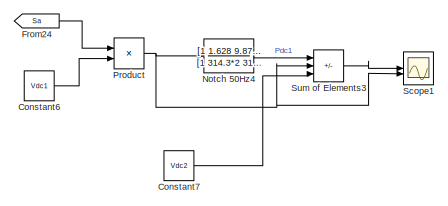
[diagram: root canvas - part 1/8, top right region]
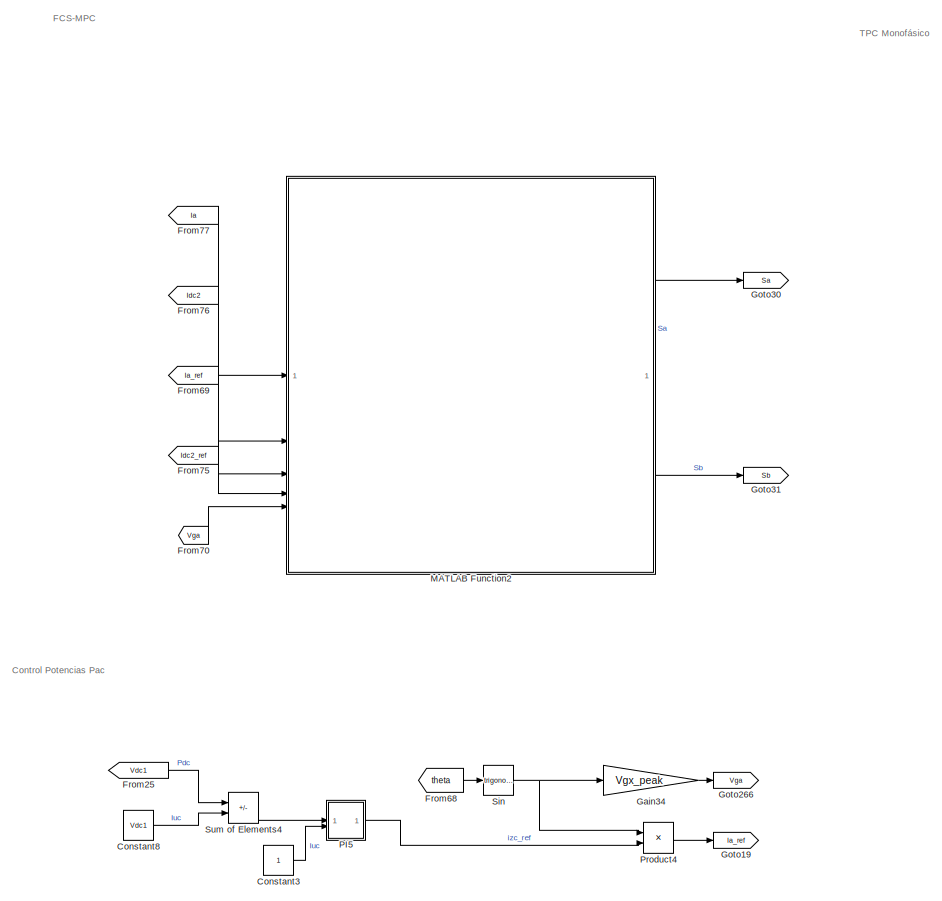
[diagram: root canvas - part 2/8, top center region]
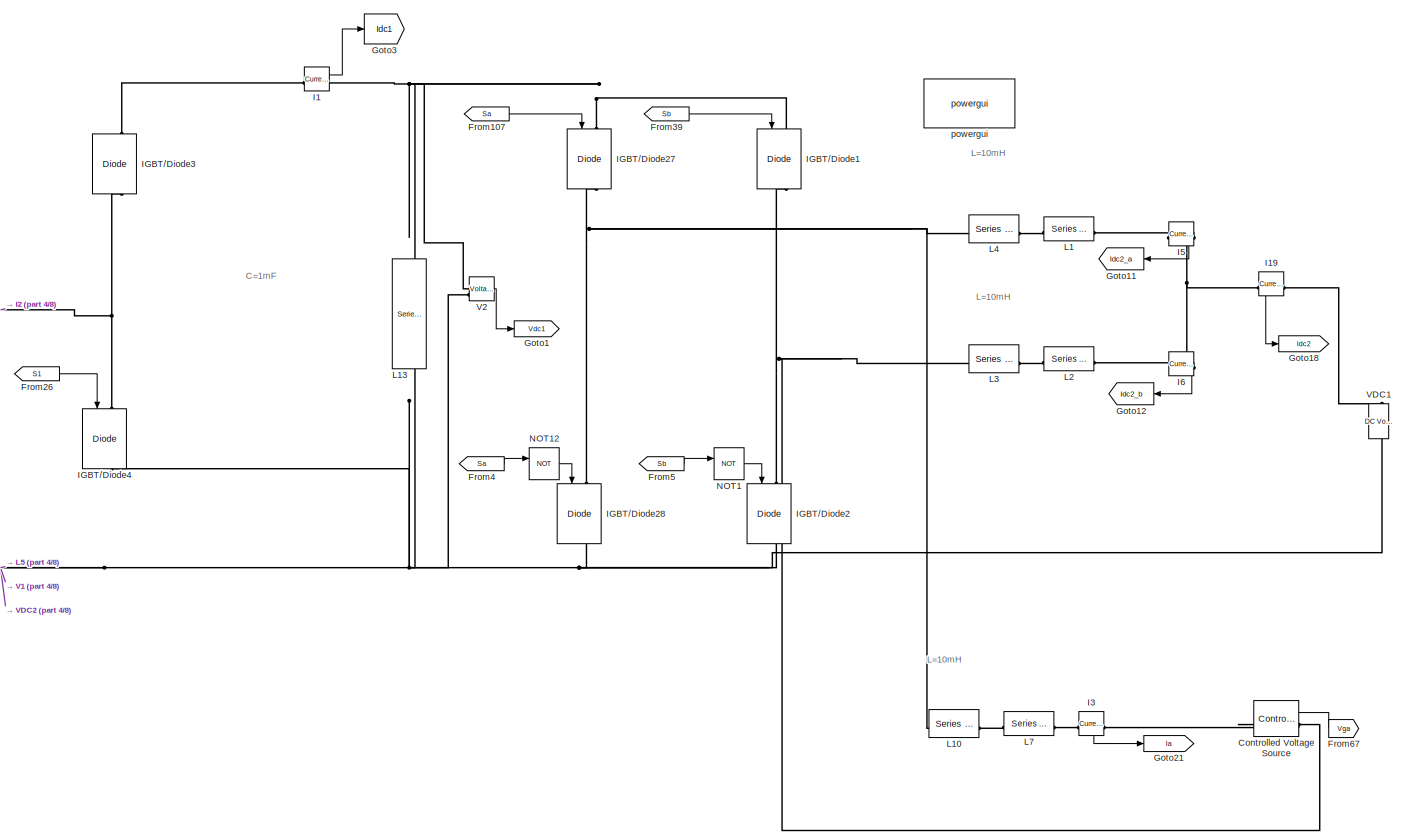
[diagram: root canvas - part 3/8, middle right region]
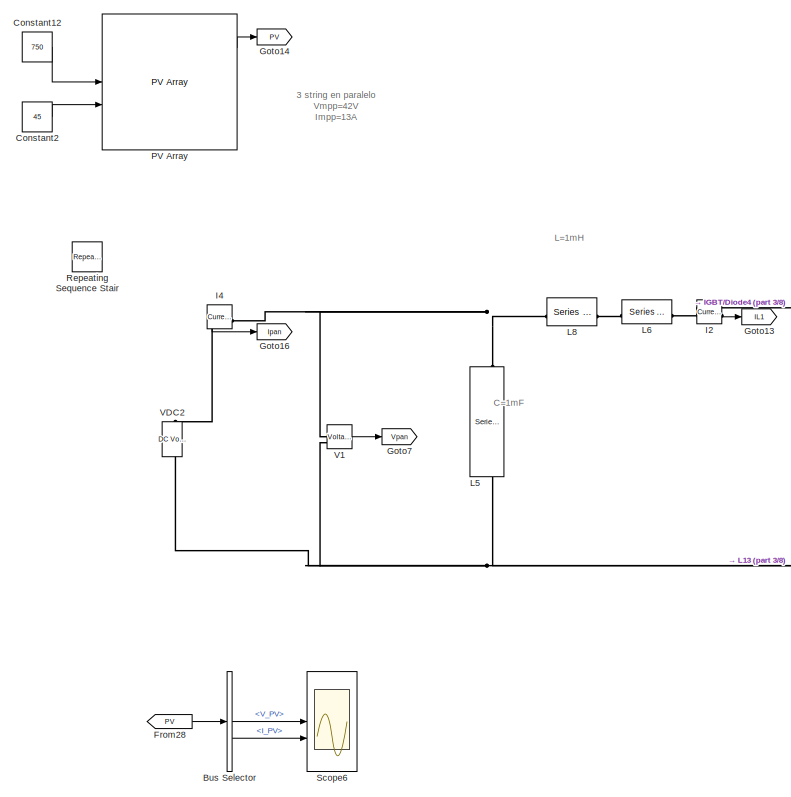
[diagram: root canvas - part 4/8, top center region]
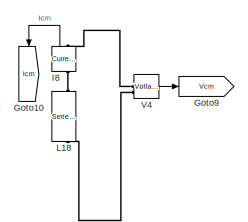
[diagram: root canvas - part 5/8, middle right region]
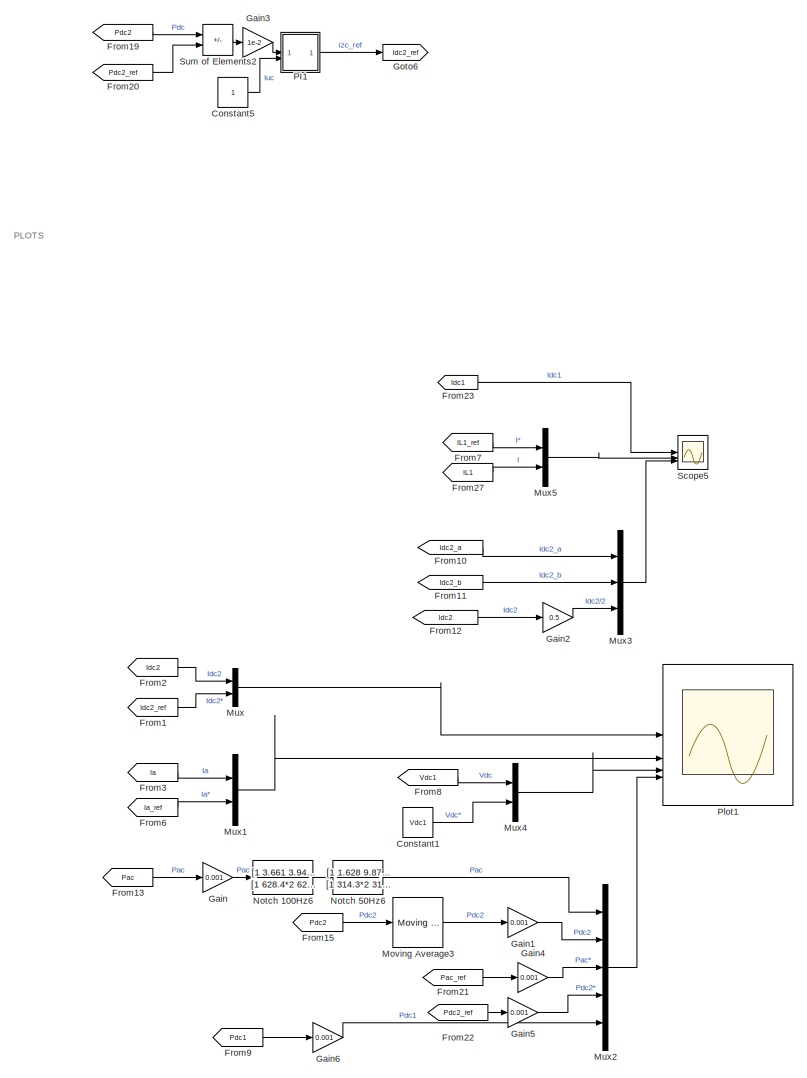
[diagram: root canvas - part 6/8, bottom center region]
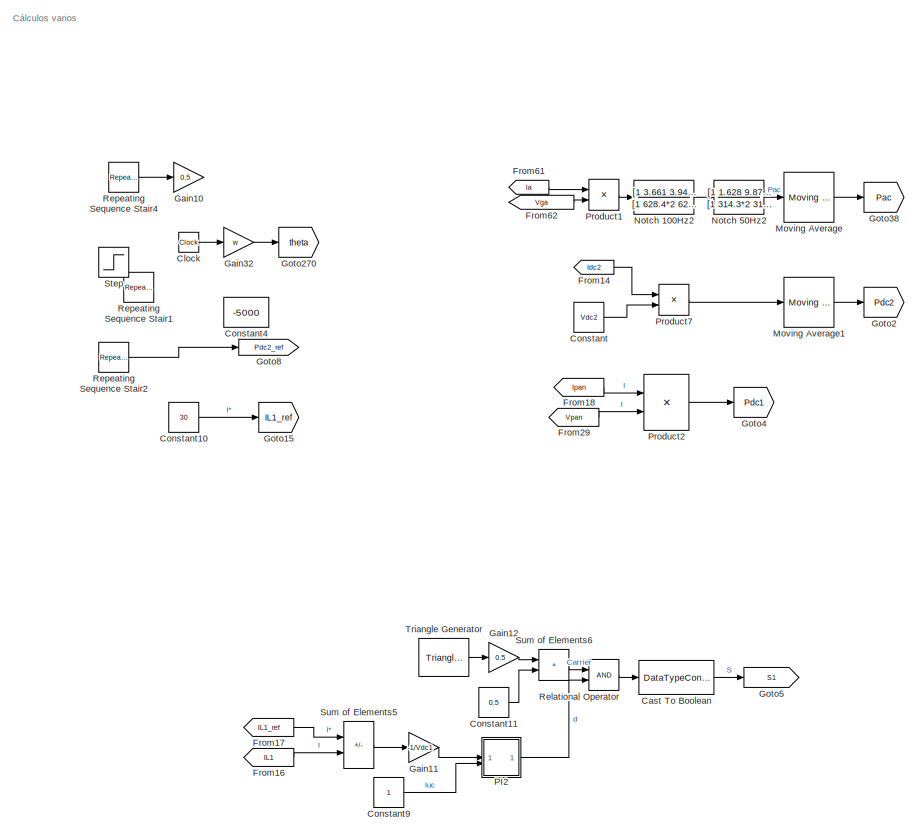
[diagram: root canvas - part 7/8, bottom center region]
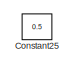
[diagram: root canvas - part 8/8, bottom left region]
MODEL slx_93b02511a772
KIND model
CONFIG AbsTol = auto
CONFIG EnableMultiTasking = off
CONFIG FixedStep = Tsimu
CONFIG MaxStep = auto
CONFIG MinStep = auto
CONFIG RelTol = 1e-3
CONFIG SampleTimeConstraint = Unconstrained
CONFIG SolverName = FixedStepAuto
CONFIG StartTime = 0.0
CONFIG StopTime = 5
BLOCK [BusSelector] Bus Selector
  OutputSignals = V_PV,I_PV
BLOCK [DataTypeConversion] Cast To Boolean
  OutDataTypeStr = boolean
  RndMeth = Floor
  SaturateOnIntegerOverflow = off
BLOCK [Clock] Clock
BLOCK [Constant] Constant
  NameLocation = left
  Value = Vdc2
BLOCK [Constant] Constant1
  Value = Vdc1
BLOCK [Constant] Constant10
  Value = 30
BLOCK [Constant] Constant11
  Value = 0.5
BLOCK [Constant] Constant12
  Value = 750
BLOCK [Constant] Constant2
  Value = 45
BLOCK [Constant] Constant25
  Value = 0.5
BLOCK [Constant] Constant3
BLOCK [Constant] Constant4
  Value = -5000
BLOCK [Constant] Constant5
BLOCK [Constant] Constant6
  Commented = on
  Value = Vdc1
BLOCK [Constant] Constant7
  Commented = on
  Value = Vdc2
BLOCK [Constant] Constant8
  Value = Vdc1
BLOCK [Constant] Constant9
BLOCK [Reference] Controlled Voltage Source  REF=spsControlledVoltageSourceLib/Controlled Voltage Source
  NameLocation = top
  SourceBlock = spsControlledVoltageSourceLib/Controlled Voltage Source
  SourceType = Controlled Voltage Source
BLOCK [From] From1
  GotoTag = Idc2_ref
BLOCK [From] From10
  GotoTag = Idc2_a
BLOCK [From] From107
  GotoTag = Sa
BLOCK [From] From11
  GotoTag = Idc2_b
BLOCK [From] From12
  GotoTag = Idc2
BLOCK [From] From13
  GotoTag = Pac
BLOCK [From] From14
  GotoTag = Idc2
BLOCK [From] From15
  GotoTag = Pdc2
BLOCK [From] From16
  GotoTag = IL1
BLOCK [From] From17
  GotoTag = IL1_ref
BLOCK [From] From18
  GotoTag = Ipan
BLOCK [From] From19
  GotoTag = Pdc2
BLOCK [From] From2
  GotoTag = Idc2
BLOCK [From] From20
  GotoTag = Pdc2_ref
BLOCK [From] From21
  Commented = on
  GotoTag = Pac_ref
BLOCK [From] From22
  GotoTag = Pdc2_ref
BLOCK [From] From23
  GotoTag = Idc1
BLOCK [From] From24
  Commented = on
  GotoTag = Sa
BLOCK [From] From25
  GotoTag = Vdc1
BLOCK [From] From26
  GotoTag = S1
BLOCK [From] From27
  GotoTag = IL1
BLOCK [From] From28
  GotoTag = PV
BLOCK [From] From29
  GotoTag = Vpan
BLOCK [From] From3
  GotoTag = Ia
BLOCK [From] From39
  GotoTag = Sb
BLOCK [From] From4
  GotoTag = Sa
BLOCK [From] From5
  GotoTag = Sb
BLOCK [From] From6
  GotoTag = Ia_ref
BLOCK [From] From61
  GotoTag = Ia
BLOCK [From] From62
  GotoTag = Vga
BLOCK [From] From67
  GotoTag = Vga
  NameLocation = top
BLOCK [From] From68
  GotoTag = theta
BLOCK [From] From69
  GotoTag = Ia_ref
BLOCK [From] From7
  GotoTag = IL1_ref
BLOCK [From] From70
  GotoTag = Vga
BLOCK [From] From75
  GotoTag = Idc2_ref
BLOCK [From] From76
  GotoTag = Idc2
BLOCK [From] From77
  GotoTag = Ia
BLOCK [From] From8
  GotoTag = Vdc1
BLOCK [From] From9
  GotoTag = Pdc1
BLOCK [Gain] Gain
  Gain = 0.001
BLOCK [Gain] Gain1
  Gain = 0.001
BLOCK [Gain] Gain10
  Commented = on
  Gain = 0.5
BLOCK [Gain] Gain11
  Gain = -1/Vdc1
BLOCK [Gain] Gain12
  Gain = 0.5
BLOCK [Gain] Gain2
  Gain = 0.5
BLOCK [Gain] Gain3
  Gain = 1e-2
BLOCK [Gain] Gain32
  Gain = w
BLOCK [Gain] Gain34
  Gain = Vgx_peak
BLOCK [Gain] Gain4
  Commented = on
  Gain = 0.001
BLOCK [Gain] Gain5
  Gain = 0.001
BLOCK [Gain] Gain6
  Gain = 0.001
BLOCK [Goto] Goto1
  GotoTag = Vdc1
BLOCK [Goto] Goto10
  GotoTag = Icm
  NameLocation = right
BLOCK [Goto] Goto11
  GotoTag = Idc2_a
BLOCK [Goto] Goto12
  GotoTag = Idc2_b
BLOCK [Goto] Goto13
  GotoTag = IL1
  NameLocation = top
BLOCK [Goto] Goto14
  GotoTag = PV
  NameLocation = top
BLOCK [Goto] Goto15
  GotoTag = IL1_ref
  NameLocation = top
BLOCK [Goto] Goto16
  GotoTag = Ipan
  NameLocation = top
BLOCK [Goto] Goto18
  GotoTag = Idc2
  NameLocation = top
BLOCK [Goto] Goto19
  GotoTag = Ia_ref
BLOCK [Goto] Goto2
  GotoTag = Pdc2
  NameLocation = top
BLOCK [Goto] Goto21
  GotoTag = Ia
  NameLocation = top
BLOCK [Goto] Goto266
  GotoTag = Vga
BLOCK [Goto] Goto270
  GotoTag = theta
BLOCK [Goto] Goto3
  GotoTag = Idc1
  NameLocation = top
BLOCK [Goto] Goto30
  GotoTag = Sa
BLOCK [Goto] Goto31
  GotoTag = Sb
BLOCK [Goto] Goto38
  GotoTag = Pac
  NameLocation = top
BLOCK [Goto] Goto4
  GotoTag = Pdc1
  NameLocation = top
BLOCK [Goto] Goto5
  GotoTag = S1
  NameLocation = top
BLOCK [Goto] Goto6
  GotoTag = Idc2_ref
BLOCK [Goto] Goto7
  GotoTag = Vpan
  NameLocation = top
BLOCK [Goto] Goto8
  GotoTag = Pdc2_ref
  NameLocation = left
BLOCK [Goto] Goto9
  GotoTag = Vcm
  NameLocation = top
BLOCK [Reference] I1  REF=spsCurrentMeasurementLib/Current Measurement
  NameLocation = top
  SourceBlock = spsCurrentMeasurementLib/Current Measurement
  SourceType = Current Measurement
BLOCK [Reference] I19  REF=spsCurrentMeasurementLib/Current Measurement
  SourceBlock = spsCurrentMeasurementLib/Current Measurement
  SourceType = Current Measurement
BLOCK [Reference] I2  REF=spsCurrentMeasurementLib/Current Measurement
  SourceBlock = spsCurrentMeasurementLib/Current Measurement
  SourceType = Current Measurement
BLOCK [Reference] I3  REF=spsCurrentMeasurementLib/Current Measurement
  SourceBlock = spsCurrentMeasurementLib/Current Measurement
  SourceType = Current Measurement
BLOCK [Reference] I4  REF=spsCurrentMeasurementLib/Current Measurement
  SourceBlock = spsCurrentMeasurementLib/Current Measurement
  SourceType = Current Measurement
BLOCK [Reference] I5  REF=spsCurrentMeasurementLib/Current Measurement
  SourceBlock = spsCurrentMeasurementLib/Current Measurement
  SourceType = Current Measurement
BLOCK [Reference] I6  REF=spsCurrentMeasurementLib/Current Measurement
  SourceBlock = spsCurrentMeasurementLib/Current Measurement
  SourceType = Current Measurement
BLOCK [Reference] I8  REF=spsCurrentMeasurementLib/Current Measurement
  NameLocation = left
  SourceBlock = spsCurrentMeasurementLib/Current Measurement
  SourceType = Current Measurement
BLOCK [Reference] IGBT//Diode1  REF=spsIGBTDiodeLib/IGBT//Diode
  NameLocation = left
  SourceBlock = spsIGBTDiodeLib/IGBT//Diode
  SourceType = IGBT/Diode
BLOCK [Reference] IGBT//Diode2  REF=spsIGBTDiodeLib/IGBT//Diode
  NameLocation = left
  SourceBlock = spsIGBTDiodeLib/IGBT//Diode
  SourceType = IGBT/Diode
BLOCK [Reference] IGBT//Diode27  REF=spsIGBTDiodeLib/IGBT//Diode
  NameLocation = left
  SourceBlock = spsIGBTDiodeLib/IGBT//Diode
  SourceType = IGBT/Diode
BLOCK [Reference] IGBT//Diode28  REF=spsIGBTDiodeLib/IGBT//Diode
  NameLocation = left
  SourceBlock = spsIGBTDiodeLib/IGBT//Diode
  SourceType = IGBT/Diode
BLOCK [Reference] IGBT//Diode3  REF=spsIGBTDiodeLib/IGBT//Diode
  NameLocation = left
  SourceBlock = spsIGBTDiodeLib/IGBT//Diode
  SourceType = IGBT/Diode
BLOCK [Reference] IGBT//Diode4  REF=spsIGBTDiodeLib/IGBT//Diode
  NameLocation = left
  SourceBlock = spsIGBTDiodeLib/IGBT//Diode
  SourceType = IGBT/Diode
BLOCK [Reference] L1  REF=spsSeriesRLCBranchLib/Series RLC Branch
  SourceBlock = spsSeriesRLCBranchLib/Series RLC Branch
  SourceType = Series RLC Branch
BLOCK [Reference] L10  REF=spsSeriesRLCBranchLib/Series RLC Branch
  SourceBlock = spsSeriesRLCBranchLib/Series RLC Branch
  SourceType = Series RLC Branch
BLOCK [Reference] L13  REF=spsSeriesRLCBranchLib/Series RLC Branch
  NameLocation = left
  SourceBlock = spsSeriesRLCBranchLib/Series RLC Branch
  SourceType = Series RLC Branch
BLOCK [Reference] L18  REF=spsSeriesRLCBranchLib/Series RLC Branch
  NameLocation = left
  SourceBlock = spsSeriesRLCBranchLib/Series RLC Branch
  SourceType = Series RLC Branch
BLOCK [Reference] L2  REF=spsSeriesRLCBranchLib/Series RLC Branch
  SourceBlock = spsSeriesRLCBranchLib/Series RLC Branch
  SourceType = Series RLC Branch
BLOCK [Reference] L3  REF=spsSeriesRLCBranchLib/Series RLC Branch
  SourceBlock = spsSeriesRLCBranchLib/Series RLC Branch
  SourceType = Series RLC Branch
BLOCK [Reference] L4  REF=spsSeriesRLCBranchLib/Series RLC Branch
  SourceBlock = spsSeriesRLCBranchLib/Series RLC Branch
  SourceType = Series RLC Branch
BLOCK [Reference] L5  REF=spsSeriesRLCBranchLib/Series RLC Branch
  NameLocation = left
  SourceBlock = spsSeriesRLCBranchLib/Series RLC Branch
  SourceType = Series RLC Branch
BLOCK [Reference] L6  REF=spsSeriesRLCBranchLib/Series RLC Branch
  SourceBlock = spsSeriesRLCBranchLib/Series RLC Branch
  SourceType = Series RLC Branch
BLOCK [Reference] L7  REF=spsSeriesRLCBranchLib/Series RLC Branch
  SourceBlock = spsSeriesRLCBranchLib/Series RLC Branch
  SourceType = Series RLC Branch
BLOCK [Reference] L8  REF=spsSeriesRLCBranchLib/Series RLC Branch
  SourceBlock = spsSeriesRLCBranchLib/Series RLC Branch
  SourceType = Series RLC Branch
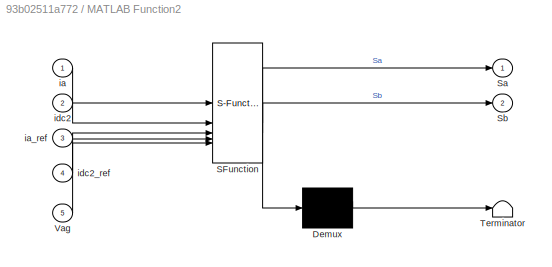
BLOCK [SubSystem] MATLAB Function2
  ErrorFcn = Stateflow.Translate.translate
  PermitHierarchicalResolution = ExplicitOnly
  SFBlockType = MATLAB Function
  TreatAsAtomicUnit = on
BLOCK [Demux] MATLAB Function2/ Demux 
  Outputs = 1
BLOCK [S-Function] MATLAB Function2/ SFunction 
  EnableBusSupport = on
  FunctionName = sf_sfun
  Parameters = A,B,Lo,Ts,Vdc1,Vdc2
  PortCounts = [5 3]
  SFcnIsStateOwnerBlock = off
  SFunctionDeploymentMode = off
  Tag = Stateflow S-Function 2
BLOCK [Terminator] MATLAB Function2/ Terminator 
BLOCK [Outport] MATLAB Function2/Sa
BLOCK [Outport] MATLAB Function2/Sb
  Port = 2
BLOCK [Inport] MATLAB Function2/Vag
  Port = 5
BLOCK [Inport] MATLAB Function2/ia
BLOCK [Inport] MATLAB Function2/ia_ref
  Port = 3
BLOCK [Inport] MATLAB Function2/idc2
  Port = 2
BLOCK [Inport] MATLAB Function2/idc2_ref
  Port = 4
BLOCK [Reference] Moving Average  REF=dspstat3/Moving
Average
  SourceBlock = dspstat3/Moving\nAverage
  SourceType = dsp.simulink.MovingAverage
BLOCK [Reference] Moving Average1  REF=dspstat3/Moving
Average
  SourceBlock = dspstat3/Moving\nAverage
  SourceType = dsp.simulink.MovingAverage
BLOCK [Reference] Moving Average3  REF=dspstat3/Moving
Average
  SourceBlock = dspstat3/Moving\nAverage
  SourceType = dsp.simulink.MovingAverage
BLOCK [Mux] Mux
  DisplayOption = bar
  Inputs = 2
BLOCK [Mux] Mux1
  DisplayOption = bar
  Inputs = 2
BLOCK [Mux] Mux2
  DisplayOption = bar
  Inputs = 5
BLOCK [Mux] Mux3
  DisplayOption = bar
  Inputs = 3
BLOCK [Mux] Mux4
  DisplayOption = bar
  Inputs = 2
BLOCK [Mux] Mux5
  DisplayOption = bar
  Inputs = 2
BLOCK [Logic] NOT1
  AllPortsSameDT = off
  IconShape = distinctive
  Operator = NOT
  OutDataTypeStr = boolean
BLOCK [Logic] NOT12
  AllPortsSameDT = off
  IconShape = distinctive
  Operator = NOT
  OutDataTypeStr = boolean
BLOCK [TransferFcn] Notch 100Hz2
  Denominator = [1 628.4*2 628.4^2]
  Numerator = [1 3.661 3.949e5]
BLOCK [TransferFcn] Notch 100Hz6
  Denominator = [1 628.4*2 628.4^2]
  Numerator = [1 3.661 3.949e5]
BLOCK [TransferFcn] Notch 50Hz2
  Denominator = [1 314.3*2 314.3^2]
  Numerator = [1 1.628 9.876e4]
BLOCK [TransferFcn] Notch 50Hz4
  Commented = on
  Denominator = [1 314.3*2 314.3^2]
  Numerator = [1 1.628 9.876e4]
BLOCK [TransferFcn] Notch 50Hz6
  Denominator = [1 314.3*2 314.3^2]
  Numerator = [1 1.628 9.876e4]
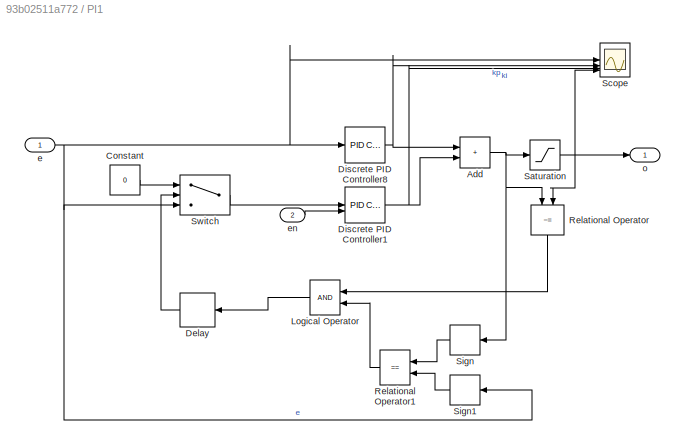
BLOCK [SubSystem] PI1
BLOCK [Sum] PI1/Add
  IconShape = rectangular
BLOCK [Constant] PI1/Constant
  Value = 0
BLOCK [Delay] PI1/Delay
  DelayLength = 1
  InitialCondition = 0
  InputPortMap = u0
  NameLocation = top
BLOCK [Reference] PI1/Discrete PID Controller1  REF=slpidlib/PID Controller
  SourceBlock = slpidlib/PID Controller
  SourceType = PID 1dof
BLOCK [Reference] PI1/Discrete PID Controller8  REF=slpidlib/PID Controller
  SourceBlock = slpidlib/PID Controller
  SourceType = PID 1dof
BLOCK [Logic] PI1/Logical Operator
  AllPortsSameDT = off
  NameLocation = top
  OutDataTypeStr = boolean
BLOCK [RelationalOperator] PI1/Relational Operator
  InputSameDT = off
  NameLocation = left
  Operator = ~=
  OutDataTypeStr = boolean
BLOCK [RelationalOperator] PI1/Relational Operator1
  InputSameDT = off
  NameLocation = top
  Operator = ==
  OutDataTypeStr = boolean
BLOCK [Saturate] PI1/Saturation
  LowerLimit = -80
  UpperLimit = 80
BLOCK [Scope] PI1/Scope
  Floating = off
  NumInputPorts = 4
  ScopeSpecificationString = Simulink.scopes.TimeScopeBlockCfg('CurrentConfiguration', extmgr.ConfigurationSet(extmgr.Configuration('Core','General UI',true),extmgr.Configuration('Core','Source UI',true),extmgr.Configuration('Sources','WiredSimulink',true,'DataLoggingVariableName','ScopeData1'),extmgr.Configuration('Visuals','Time Domain',true,'SerializedDisplays',{struct('MinYLimReal','-11.91567','MaxYLimReal','3.81249','YLa...<+1532ch>
BLOCK [Signum] PI1/Sign
  NameLocation = top
BLOCK [Signum] PI1/Sign1
  NameLocation = top
BLOCK [Switch] PI1/Switch
  Criteria = u2 > Threshold
  InputSameDT = off
  SaturateOnIntegerOverflow = off
BLOCK [Inport] PI1/e
BLOCK [Inport] PI1/en
  Port = 2
BLOCK [Outport] PI1/o
  VectorParamsAs1DForOutWhenUnconnected = off
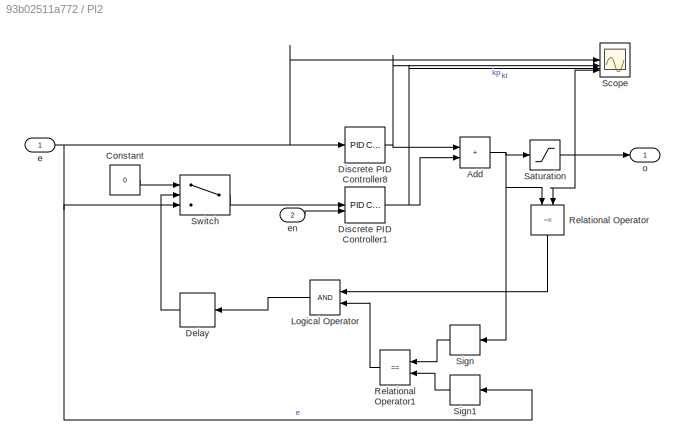
BLOCK [SubSystem] PI2
BLOCK [Sum] PI2/Add
  IconShape = rectangular
BLOCK [Constant] PI2/Constant
  Value = 0
BLOCK [Delay] PI2/Delay
  DelayLength = 1
  InitialCondition = 0
  InputPortMap = u0
  NameLocation = top
BLOCK [Reference] PI2/Discrete PID Controller1  REF=slpidlib/PID Controller
  SourceBlock = slpidlib/PID Controller
  SourceType = PID 1dof
BLOCK [Reference] PI2/Discrete PID Controller8  REF=slpidlib/PID Controller
  SourceBlock = slpidlib/PID Controller
  SourceType = PID 1dof
BLOCK [Logic] PI2/Logical Operator
  AllPortsSameDT = off
  NameLocation = top
  OutDataTypeStr = boolean
BLOCK [RelationalOperator] PI2/Relational Operator
  InputSameDT = off
  NameLocation = left
  Operator = ~=
  OutDataTypeStr = boolean
BLOCK [RelationalOperator] PI2/Relational Operator1
  InputSameDT = off
  NameLocation = top
  Operator = ==
  OutDataTypeStr = boolean
BLOCK [Saturate] PI2/Saturation
  LowerLimit = 0
  UpperLimit = 1
BLOCK [Scope] PI2/Scope
  Floating = off
  NumInputPorts = 4
  ScopeSpecificationString = Simulink.scopes.TimeScopeBlockCfg('CurrentConfiguration', extmgr.ConfigurationSet(extmgr.Configuration('Core','General UI',true),extmgr.Configuration('Core','Source UI',true),extmgr.Configuration('Sources','WiredSimulink',true,'DataLoggingVariableName','ScopeData1'),extmgr.Configuration('Visuals','Time Domain',true,'SerializedDisplays',{struct('MinYLimReal','-0.11488','MaxYLimReal','0.96061','YLab...<+1574ch>
BLOCK [Signum] PI2/Sign
  NameLocation = top
BLOCK [Signum] PI2/Sign1
  NameLocation = top
BLOCK [Switch] PI2/Switch
  Criteria = u2 > Threshold
  InputSameDT = off
  SaturateOnIntegerOverflow = off
BLOCK [Inport] PI2/e
BLOCK [Inport] PI2/en
  Port = 2
BLOCK [Outport] PI2/o
  VectorParamsAs1DForOutWhenUnconnected = off
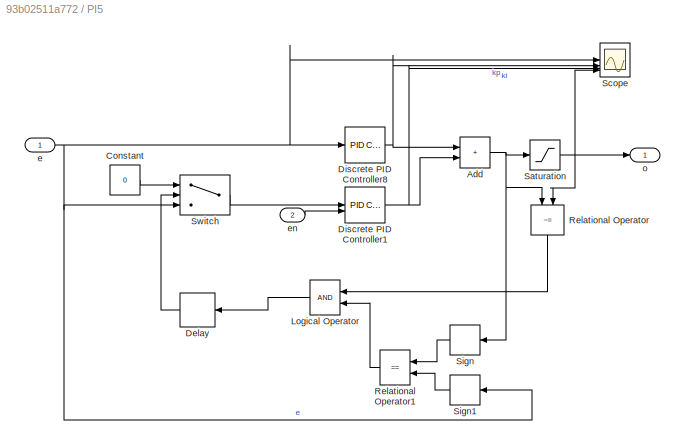
BLOCK [SubSystem] PI5
BLOCK [Sum] PI5/Add
  IconShape = rectangular
BLOCK [Constant] PI5/Constant
  Value = 0
BLOCK [Delay] PI5/Delay
  DelayLength = 1
  InitialCondition = 0
  InputPortMap = u0
  NameLocation = top
BLOCK [Reference] PI5/Discrete PID Controller1  REF=slpidlib/PID Controller
  SourceBlock = slpidlib/PID Controller
  SourceType = PID 1dof
BLOCK [Reference] PI5/Discrete PID Controller8  REF=slpidlib/PID Controller
  SourceBlock = slpidlib/PID Controller
  SourceType = PID 1dof
BLOCK [Logic] PI5/Logical Operator
  AllPortsSameDT = off
  NameLocation = top
  OutDataTypeStr = boolean
BLOCK [RelationalOperator] PI5/Relational Operator
  InputSameDT = off
  NameLocation = left
  Operator = ~=
  OutDataTypeStr = boolean
BLOCK [RelationalOperator] PI5/Relational Operator1
  InputSameDT = off
  NameLocation = top
  Operator = ==
  OutDataTypeStr = boolean
BLOCK [Saturate] PI5/Saturation
  LowerLimit = -110
  UpperLimit = 110
BLOCK [Scope] PI5/Scope
  Floating = off
  NumInputPorts = 4
  ScopeSpecificationString = Simulink.scopes.TimeScopeBlockCfg('CurrentConfiguration', extmgr.ConfigurationSet(extmgr.Configuration('Core','General UI',true),extmgr.Configuration('Core','Source UI',true),extmgr.Configuration('Sources','WiredSimulink',true,'DataLoggingVariableName','ScopeData1'),extmgr.Configuration('Visuals','Time Domain',true,'SerializedDisplays',{struct('MinYLimReal','-648.47034','MaxYLimReal','1337.07936',...<+1574ch>
BLOCK [Signum] PI5/Sign
  NameLocation = top
BLOCK [Signum] PI5/Sign1
  NameLocation = top
BLOCK [Switch] PI5/Switch
  Criteria = u2 > Threshold
  InputSameDT = off
  SaturateOnIntegerOverflow = off
BLOCK [Inport] PI5/e
BLOCK [Inport] PI5/en
  Port = 2
BLOCK [Outport] PI5/o
  VectorParamsAs1DForOutWhenUnconnected = off
BLOCK [Reference] PV Array  REF=spsPVArrayLib/PV Array
  LibrarySourceBlock = sps_lib/Sources/PV Array
  SourceBlock = spsPVArrayLib/PV Array
  SourceType = PV array
BLOCK [Scope] Plot1
  Floating = off
  NumInputPorts = 4
  ScopeSpecificationString = Simulink.scopes.TimeScopeBlockCfg('CurrentConfiguration', extmgr.ConfigurationSet(extmgr.Configuration('Core','General UI',true),extmgr.Configuration('Core','Source UI',true),extmgr.Configuration('Sources','WiredSimulink',true),extmgr.Configuration('Visuals','Time Domain',true,'SerializedDisplays',{struct('MinYLimReal','-5.31498','MaxYLimReal','4.71835','YLabelReal','[A]','MinYLimMag','0.00000','M...<+3743ch>
BLOCK [Product] Product
  Commented = on
BLOCK [Product] Product1
BLOCK [Product] Product2
BLOCK [Product] Product4
BLOCK [Product] Product7
BLOCK [RelationalOperator] Relational Operator
  InputSameDT = off
  OutDataTypeStr = boolean
  RndMeth = Simplest
BLOCK [Reference] Repeating Sequence Stair  REF=simulink/Sources/Repeating
Sequence
Stair
  SourceBlock = simulink/Sources/Repeating\nSequence\nStair
  SourceType = Repeating Sequence Stair
BLOCK [Reference] Repeating Sequence Stair1  REF=simulink/Sources/Repeating
Sequence
Stair
  SourceBlock = simulink/Sources/Repeating\nSequence\nStair
  SourceType = Repeating Sequence Stair
BLOCK [Reference] Repeating Sequence Stair2  REF=simulink/Sources/Repeating
Sequence
Stair
  SourceBlock = simulink/Sources/Repeating\nSequence\nStair
  SourceType = Repeating Sequence Stair
BLOCK [Reference] Repeating Sequence Stair4  REF=simulink/Sources/Repeating
Sequence
Stair
  Commented = on
  SourceBlock = simulink/Sources/Repeating\nSequence\nStair
  SourceType = Repeating Sequence Stair
BLOCK [Scope] Scope1
  Commented = on
  Floating = off
  NumInputPorts = 2
  ScopeSpecificationString = Simulink.scopes.TimeScopeBlockCfg('CurrentConfiguration', extmgr.ConfigurationSet(extmgr.Configuration('Core','General UI',true),extmgr.Configuration('Core','Source UI',true),extmgr.Configuration('Sources','WiredSimulink',true,'DataLoggingVariableName','ScopeData2'),extmgr.Configuration('Visuals','Time Domain',true,'SerializedDisplays',{struct('MinYLimReal','-67.15144','MaxYLimReal','472.63046','Y...<+1482ch>
BLOCK [Scope] Scope5
  Floating = off
  NumInputPorts = 3
  ScopeSpecificationString = Simulink.scopes.TimeScopeBlockCfg('CurrentConfiguration', extmgr.ConfigurationSet(extmgr.Configuration('Core','General UI',true),extmgr.Configuration('Core','Source UI',true),extmgr.Configuration('Sources','WiredSimulink',true,'DataLoggingVariableName','ScopeData1'),extmgr.Configuration('Visuals','Time Domain',true,'SerializedDisplays',{struct('MinYLimReal','-8.34377','MaxYLimReal','75.02791','YLa...<+2818ch>
BLOCK [Scope] Scope6
  Floating = off
  NumInputPorts = 2
  ScopeSpecificationString = Simulink.scopes.TimeScopeBlockCfg('CurrentConfiguration', extmgr.ConfigurationSet(extmgr.Configuration('Core','General UI',true),extmgr.Configuration('Core','Source UI',true),extmgr.Configuration('Sources','WiredSimulink',true,'DataLoggingVariableName','ScopeData3'),extmgr.Configuration('Visuals','Time Domain',true,'SerializedDisplays',{struct('MinYLimReal','314.34823','MaxYLimReal','368.97528','Y...<+2141ch>
BLOCK [Trigonometry] Sin
BLOCK [Step] Step
  After = -5000
  SampleTime = 0
  Time = 1.5
BLOCK [Sum] Sum of Elements2
  IconShape = rectangular
  Inputs = -+
BLOCK [Sum] Sum of Elements3
  Commented = on
  IconShape = rectangular
  Inputs = -++
BLOCK [Sum] Sum of Elements4
  IconShape = rectangular
  Inputs = +-
BLOCK [Sum] Sum of Elements5
  IconShape = rectangular
  Inputs = +-
BLOCK [Sum] Sum of Elements6
  IconShape = rectangular
BLOCK [Reference] Triangle Generator  REF=spsTriangleGeneratorLib/Triangle
Generator
  LibrarySourceBlock = sps_lib/Sources/Signal Generator Sources/Triangle\nGenerator
  SourceBlock = spsTriangleGeneratorLib/Triangle\nGenerator
  SourceType = Triangle Generator
BLOCK [Reference] V1  REF=spsVoltageMeasurementLib/Voltage Measurement
  SourceBlock = spsVoltageMeasurementLib/Voltage Measurement
  SourceType = Voltage Measurement
BLOCK [Reference] V2  REF=spsVoltageMeasurementLib/Voltage Measurement
  SourceBlock = spsVoltageMeasurementLib/Voltage Measurement
  SourceType = Voltage Measurement
BLOCK [Reference] V4  REF=spsVoltageMeasurementLib/Voltage Measurement
  SourceBlock = spsVoltageMeasurementLib/Voltage Measurement
  SourceType = Voltage Measurement
BLOCK [Reference] VDC1  REF=spsDCVoltageSourceLib/DC Voltage Source
  NameLocation = right
  SourceBlock = spsDCVoltageSourceLib/DC Voltage Source
  SourceType = DC Voltage Source
BLOCK [Reference] VDC2  REF=spsDCVoltageSourceLib/DC Voltage Source
  NameLocation = right
  SourceBlock = spsDCVoltageSourceLib/DC Voltage Source
  SourceType = DC Voltage Source
BLOCK [Reference] powergui  REF=spspowerguiLib/powergui
  NameLocation = left
  Priority = 1
  SourceBlock = spspowerguiLib/powergui
  SourceType = PSB option menu block
ANNOTATION (root): C=1mF
ANNOTATION (root): L=10mH
ANNOTATION (root): L=1mH
ANNOTATION (root): 3 string en paralelo Vmpp=42V Impp=13A
ANNOTATION (root): Control Potencias Pac Control Potencia Pdc2
ANNOTATION (root): Cálculos varios
ANNOTATION (root): FCS-MPC
ANNOTATION (root): PLOTS
ANNOTATION (root): TPC Monofásico
LINE Bus Selector:1 -> Scope6:1
LINE Bus Selector:2 -> Scope6:2
LINE Cast To Boolean:1 -> Goto5:1
LINE Clock:1 -> Gain32:1
LINE Constant10:1 -> Goto15:1
LINE Constant11:1 -> Sum of Elements6:2
LINE Constant12:1 -> PV Array:1
LINE Constant1:1 -> Mux4:2
LINE Constant2:1 -> PV Array:2
LINE Constant3:1 -> PI5:2
LINE Constant5:1 -> PI1:2
LINE Constant6:1 -> Product:2
LINE Constant7:1 -> Sum of Elements3:3
LINE Constant8:1 -> Sum of Elements4:2
LINE Constant9:1 -> PI2:2
LINE Constant:1 -> Product7:2
LINE From107:1 -> IGBT//Diode27:1
LINE From10:1 -> Mux3:1
LINE From11:1 -> Mux3:2
LINE From12:1 -> Gain2:1
LINE From13:1 -> Gain:1
LINE From14:1 -> Product7:1
LINE From15:1 -> Moving Average3:1
LINE From16:1 -> Sum of Elements5:2
LINE From17:1 -> Sum of Elements5:1
LINE From18:1 -> Product2:1
LINE From19:1 -> Sum of Elements2:1
LINE From1:1 -> Mux:2
LINE From20:1 -> Sum of Elements2:2
LINE From21:1 -> Gain4:1
LINE From22:1 -> Gain5:1
LINE From23:1 -> Scope5:1
LINE From24:1 -> Product:1
LINE From25:1 -> Sum of Elements4:1
LINE From26:1 -> IGBT//Diode4:1
LINE From27:1 -> Mux5:2
LINE From28:1 -> Bus Selector:1
LINE From29:1 -> Product2:2
LINE From2:1 -> Mux:1
LINE From39:1 -> IGBT//Diode1:1
LINE From3:1 -> Mux1:1
LINE From4:1 -> NOT12:1
LINE From5:1 -> NOT1:1
LINE From61:1 -> Product1:1
LINE From62:1 -> Product1:2
LINE From67:1 -> Controlled Voltage Source:1
LINE From68:1 -> Sin:1
LINE From69:1 -> MATLAB Function2:3
LINE From6:1 -> Mux1:2
LINE From70:1 -> MATLAB Function2:5
LINE From75:1 -> MATLAB Function2:4
LINE From76:1 -> MATLAB Function2:2
LINE From77:1 -> MATLAB Function2:1
LINE From7:1 -> Mux5:1
LINE From8:1 -> Mux4:1
LINE From9:1 -> Gain6:1
LINE Gain11:1 -> PI2:1
LINE Gain12:1 -> Sum of Elements6:1
LINE Gain1:1 -> Mux2:2
LINE Gain2:1 -> Mux3:3
LINE Gain32:1 -> Goto270:1
LINE Gain34:1 -> Goto266:1
LINE Gain3:1 -> PI1:1
LINE Gain4:1 -> Mux2:3
LINE Gain5:1 -> Mux2:4
LINE Gain6:1 -> Mux2:5
LINE Gain:1 -> Notch 100Hz6:1
LINE I19:1 -> Goto18:1
LINE I1:1 -> Goto3:1
LINE I2:1 -> Goto13:1
LINE I3:1 -> Goto21:1
LINE I4:1 -> Goto16:1
LINE I5:1 -> Goto11:1
LINE I6:1 -> Goto12:1
LINE I8:1 -> Goto10:1
LINE MATLAB Function2:1 -> Goto30:1
LINE MATLAB Function2:2 -> Goto31:1
LINE Moving Average1:1 -> Goto2:1
LINE Moving Average3:1 -> Gain1:1
LINE Moving Average:1 -> Goto38:1
LINE Mux1:1 -> Plot1:2
LINE Mux2:1 -> Plot1:4
LINE Mux3:1 -> Scope5:3
LINE Mux4:1 -> Plot1:3
LINE Mux5:1 -> Scope5:2
LINE Mux:1 -> Plot1:1
LINE NOT12:1 -> IGBT//Diode28:1
LINE NOT1:1 -> IGBT//Diode2:1
LINE Notch 100Hz2:1 -> Notch 50Hz2:1
LINE Notch 100Hz6:1 -> Notch 50Hz6:1
LINE Notch 50Hz2:1 -> Moving Average:1
LINE Notch 50Hz4:1 -> Sum of Elements3:1
LINE Notch 50Hz6:1 -> Mux2:1
NET PI1/Add:1 -> PI1/Relational Operator:1, PI1/Saturation:1, PI1/Sign:1
LINE PI1/Constant:1 -> PI1/Switch:1
LINE PI1/Delay:1 -> PI1/Switch:2
NET PI1/Discrete PID Controller1:1 -> PI1/Add:2, PI1/Scope:3
NET PI1/Discrete PID Controller8:1 -> PI1/Add:1, PI1/Scope:2
LINE PI1/Logical Operator:1 -> PI1/Delay:1
LINE PI1/Relational Operator1:1 -> PI1/Logical Operator:2
LINE PI1/Relational Operator:1 -> PI1/Logical Operator:1
NET PI1/Saturation:1 -> PI1/Relational Operator:2, PI1/Scope:4, PI1/o:1
LINE PI1/Sign1:1 -> PI1/Relational Operator1:2
LINE PI1/Sign:1 -> PI1/Relational Operator1:1
LINE PI1/Switch:1 -> PI1/Discrete PID Controller1:1
NET PI1/e:1 -> PI1/Discrete PID Controller8:1, PI1/Scope:1, PI1/Sign1:1, PI1/Switch:3
LINE PI1/en:1 -> PI1/Discrete PID Controller1:2
LINE PI1:1 -> Goto6:1
NET PI2/Add:1 -> PI2/Relational Operator:1, PI2/Saturation:1, PI2/Sign:1
LINE PI2/Constant:1 -> PI2/Switch:1
LINE PI2/Delay:1 -> PI2/Switch:2
NET PI2/Discrete PID Controller1:1 -> PI2/Add:2, PI2/Scope:3
NET PI2/Discrete PID Controller8:1 -> PI2/Add:1, PI2/Scope:2
LINE PI2/Logical Operator:1 -> PI2/Delay:1
LINE PI2/Relational Operator1:1 -> PI2/Logical Operator:2
LINE PI2/Relational Operator:1 -> PI2/Logical Operator:1
NET PI2/Saturation:1 -> PI2/Relational Operator:2, PI2/Scope:4, PI2/o:1
LINE PI2/Sign1:1 -> PI2/Relational Operator1:2
LINE PI2/Sign:1 -> PI2/Relational Operator1:1
LINE PI2/Switch:1 -> PI2/Discrete PID Controller1:1
NET PI2/e:1 -> PI2/Discrete PID Controller8:1, PI2/Scope:1, PI2/Sign1:1, PI2/Switch:3
LINE PI2/en:1 -> PI2/Discrete PID Controller1:2
LINE PI2:1 -> Relational Operator:2
NET PI5/Add:1 -> PI5/Relational Operator:1, PI5/Saturation:1, PI5/Sign:1
LINE PI5/Constant:1 -> PI5/Switch:1
LINE PI5/Delay:1 -> PI5/Switch:2
NET PI5/Discrete PID Controller1:1 -> PI5/Add:2, PI5/Scope:3
NET PI5/Discrete PID Controller8:1 -> PI5/Add:1, PI5/Scope:2
LINE PI5/Logical Operator:1 -> PI5/Delay:1
LINE PI5/Relational Operator1:1 -> PI5/Logical Operator:2
LINE PI5/Relational Operator:1 -> PI5/Logical Operator:1
NET PI5/Saturation:1 -> PI5/Relational Operator:2, PI5/Scope:4, PI5/o:1
LINE PI5/Sign1:1 -> PI5/Relational Operator1:2
LINE PI5/Sign:1 -> PI5/Relational Operator1:1
LINE PI5/Switch:1 -> PI5/Discrete PID Controller1:1
NET PI5/e:1 -> PI5/Discrete PID Controller8:1, PI5/Scope:1, PI5/Sign1:1, PI5/Switch:3
LINE PI5/en:1 -> PI5/Discrete PID Controller1:2
LINE PI5:1 -> Product4:2
LINE PV Array:1 -> Goto14:1
LINE Product1:1 -> Notch 100Hz2:1
LINE Product2:1 -> Goto4:1
LINE Product4:1 -> Goto19:1
LINE Product7:1 -> Moving Average1:1
NET Product:1 -> Notch 50Hz4:1, Scope1:2, Sum of Elements3:2
LINE Relational Operator:1 -> Cast To Boolean:1
LINE Repeating Sequence Stair2:1 -> Goto8:1
LINE Repeating Sequence Stair4:1 -> Gain10:1
NET Sin:1 -> Gain34:1, Product4:1
LINE Sum of Elements2:1 -> Gain3:1
LINE Sum of Elements3:1 -> Scope1:1
LINE Sum of Elements4:1 -> PI5:1
LINE Sum of Elements5:1 -> Gain11:1
LINE Sum of Elements6:1 -> Relational Operator:1
LINE Triangle Generator:1 -> Gain12:1
LINE V1:1 -> Goto7:1
LINE V2:1 -> Goto1:1
LINE V4:1 -> Goto9:1
PNET net1: Controlled Voltage Source:LConn1 -- IGBT//Diode1:RConn1 -- IGBT//Diode2:LConn1 -- L3:LConn1
PLINE Controlled Voltage Source:RConn1 -- I3:RConn1
PLINE I19:LConn1 -- VDC1:RConn1
PNET net2: I19:RConn1 -- I5:LConn1 -- I6:LConn1
PLINE I1:LConn1 -- IGBT//Diode3:LConn1
PNET net3: I1:RConn1 -- IGBT//Diode1:LConn1 -- IGBT//Diode27:LConn1 -- L13:LConn1 -- V2:LConn1
PLINE I2:LConn1 -- L6:RConn1
PNET net4: I2:RConn1 -- IGBT//Diode3:RConn1 -- IGBT//Diode4:LConn1
PLINE I3:LConn1 -- L7:RConn1
PLINE I4:LConn1 -- VDC2:RConn1
PNET net5: I4:RConn1 -- L5:LConn1 -- L8:LConn1 -- V1:LConn1
PLINE I5:RConn1 -- L1:RConn1
PLINE I6:RConn1 -- L2:RConn1
PLINE I8:LConn1 -- L18:LConn1
PLINE I8:RConn1 -- V4:LConn1
PNET net6: IGBT//Diode27:RConn1 -- IGBT//Diode28:LConn1 -- L10:LConn1 -- L4:LConn1
PNET net7: IGBT//Diode28:RConn1 -- IGBT//Diode2:RConn1 -- IGBT//Diode4:RConn1 -- L13:RConn1 -- L5:RConn1 -- V1:LConn2 -- V2:LConn2 -- VDC1:LConn1 -- VDC2:LConn1
PLINE L10:RConn1 -- L7:LConn1
PLINE L18:RConn1 -- V4:LConn2
PLINE L1:LConn1 -- L4:RConn1
PLINE L2:LConn1 -- L3:RConn1
PLINE L6:LConn1 -- L8:RConn1
note: NET lines group one-source signal fan-out (src -> all destinations, sorted); 1:1 wires keep LINE; PNET lines group multi-terminal physical nets as a canonical sorted terminal list (undirected conserving connections); 2-terminal nets keep the pairwise PLINE form
CHART MATLAB Function2 states=1 transitions=1
  STATE_LABEL 'eML_blk_kernel()'
  STATE_LABEL "SCRIPT:\nfunction [Sa,Sb]= FCSMPC(ia,idc2,ia_ref,idc2_ref,Vag,Vdc2,A, B, Ts, Vdc1,Lo)\npersistent Sold\nif isempty(Sold) \n    Sold=[0;0];\nend\nlambda=0.01;\nd=1/Lo*[-Vag;2*Vdc2];\nx=[ia;idc2];\nx_ref=[ia_ref;idc2_ref];\n\nFCS=[0 0;...\n     0 1;...\n     1 0;...\n     1 1 ]*Vdc1;\nJmin=10000;\nQ=[1 0;...\n   0 100];\nS=[0;1];\nfor i = 1:4\n    %as=FCS(i,:)'\n    xk1=(eye(2)+Ts*A)*x+Ts*B*FCS(i,:)'+Ts*d;\n    J=(xk1-x_...<+153ch>"
CHART  states=0 transitions=0
